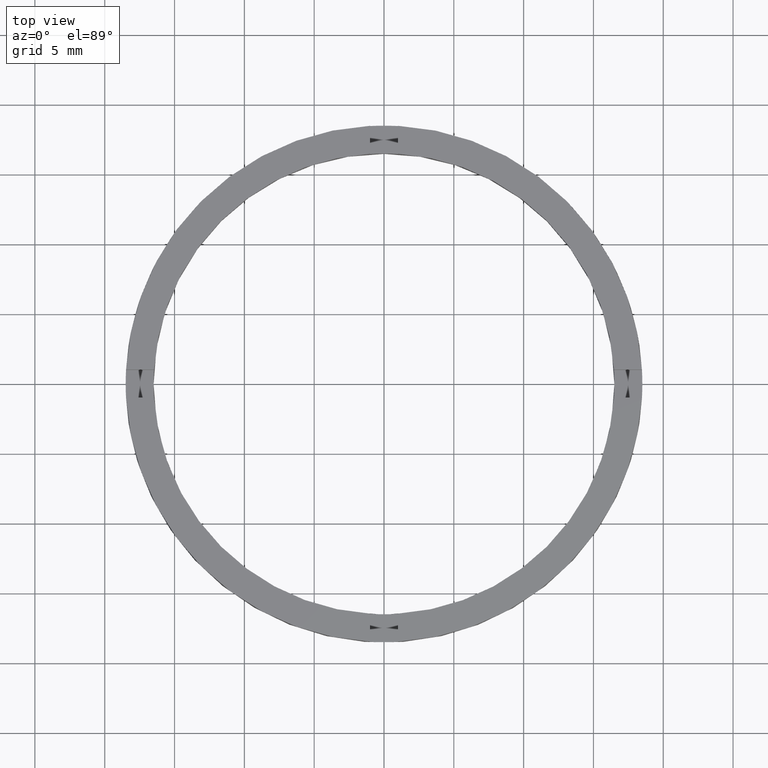
[diagram: clean part render]
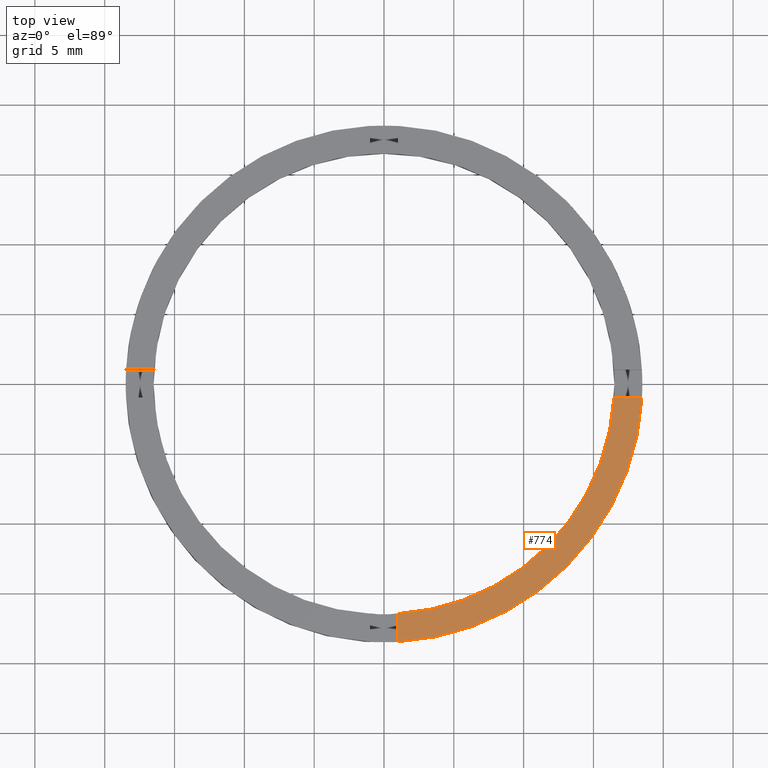
[diagram: same view with one face highlighted and labeled with its STEP entity id]
A machine part, top view. The second image highlights one B-rep face of the part: STEP entity #774.
In plain terms, the highlighted planar face has unit normal (0, 0, 1).
Its self-contained STEP definition (entity closure, byte-faithful):
#18 = CARTESIAN_POINT ( 'NONE',  ( 0.000000000000000000, 0.000000000000000000, 2.500000000000000000 ) ) ;
#23 = CARTESIAN_POINT ( 'NONE',  ( 0.000000000000000000, 0.000000000000000000, 2.500000000000000000 ) ) ;
#26 = DIRECTION ( 'NONE',  ( 0.000000000000000000, 0.000000000000000000, 1.000000000000000000 ) ) ;
#47 = DIRECTION ( 'NONE',  ( 1.000000000000000000, 8.673617379884034239E-17, 0.000000000000000000 ) ) ;
#52 = CARTESIAN_POINT ( 'NONE',  ( 0.000000000000000000, 0.000000000000000000, 2.500000000000000000 ) ) ;
#59 = DIRECTION ( 'NONE',  ( 1.000000000000000000, 0.000000000000000000, -0.000000000000000000 ) ) ;
#105 = VERTEX_POINT ( 'NONE', #247 ) ;
#128 = ORIENTED_EDGE ( 'NONE', *, *, #389, .F. ) ;
#133 = VERTEX_POINT ( 'NONE', #281 ) ;
#247 = CARTESIAN_POINT ( 'NONE',  ( 0.9999999999998391287, -18.47295320191117085, 2.500000000000000000 ) ) ;
#265 = DIRECTION ( 'NONE',  ( 0.000000000000000000, 0.000000000000000000, 1.000000000000000000 ) ) ;
#274 = EDGE_CURVE ( 'NONE', #644, #709, #400, .T. ) ;
#281 = CARTESIAN_POINT ( 'NONE',  ( 0.9999999999998389066, -16.46966909200061480, 2.500000000000000000 ) ) ;
#296 = EDGE_CURVE ( 'NONE', #105, #709, #358, .T. ) ;
#307 = PLANE ( 'NONE',  #759 ) ;
#322 = ORIENTED_EDGE ( 'NONE', *, *, #274, .F. ) ;
#338 = ORIENTED_EDGE ( 'NONE', *, *, #296, .T. ) ;
#349 = CARTESIAN_POINT ( 'NONE',  ( 16.46966909200059703, -1.000000000000157208, 2.500000000000000000 ) ) ;
#353 = DIRECTION ( 'NONE',  ( 0.000000000000000000, 0.000000000000000000, 1.000000000000000000 ) ) ;
#358 = CIRCLE ( 'NONE', #548, 18.50000000000000000 ) ;
#389 = EDGE_CURVE ( 'NONE', #105, #133, #639, .T. ) ;
#400 = LINE ( 'NONE', #685, #402 ) ;
#402 = VECTOR ( 'NONE', #47, 1000.000000000000000 ) ;
#409 = DIRECTION ( 'NONE',  ( 1.000000000000000000, 0.000000000000000000, 0.000000000000000000 ) ) ;
#415 = CIRCLE ( 'NONE', #763, 16.50000000000000000 ) ;
#458 = FACE_OUTER_BOUND ( 'NONE', #719, .T. ) ;
#475 = CARTESIAN_POINT ( 'NONE',  ( 0.9999999999998377964, -8.500000000000179412, 2.500000000000000000 ) ) ;
#536 = EDGE_CURVE ( 'NONE', #133, #644, #415, .T. ) ;
#548 = AXIS2_PLACEMENT_3D ( 'NONE', #18, #353, #596 ) ;
#596 = DIRECTION ( 'NONE',  ( 1.000000000000000000, 0.000000000000000000, 0.000000000000000000 ) ) ;
#608 = DIRECTION ( 'NONE',  ( -1.301042606982605321E-16, 1.000000000000000000, -0.000000000000000000 ) ) ;
#639 = LINE ( 'NONE', #475, #674 ) ;
#644 = VERTEX_POINT ( 'NONE', #349 ) ;
#674 = VECTOR ( 'NONE', #608, 1000.000000000000000 ) ;
#685 = CARTESIAN_POINT ( 'NONE',  ( 8.499999999999992895, -1.000000000000158096, 2.500000000000000000 ) ) ;
#697 = ORIENTED_EDGE ( 'NONE', *, *, #536, .F. ) ;
#709 = VERTEX_POINT ( 'NONE', #742 ) ;
#719 = EDGE_LOOP ( 'NONE', ( #322, #697, #128, #338 ) ) ;
#742 = CARTESIAN_POINT ( 'NONE',  ( 18.47295320191115309, -1.000000000000157208, 2.500000000000000000 ) ) ;
#759 = AXIS2_PLACEMENT_3D ( 'NONE', #23, #26, #59 ) ;
#763 = AXIS2_PLACEMENT_3D ( 'NONE', #52, #265, #409 ) ;
#774 = ADVANCED_FACE ( 'NONE', ( #458 ), #307, .T. ) ;